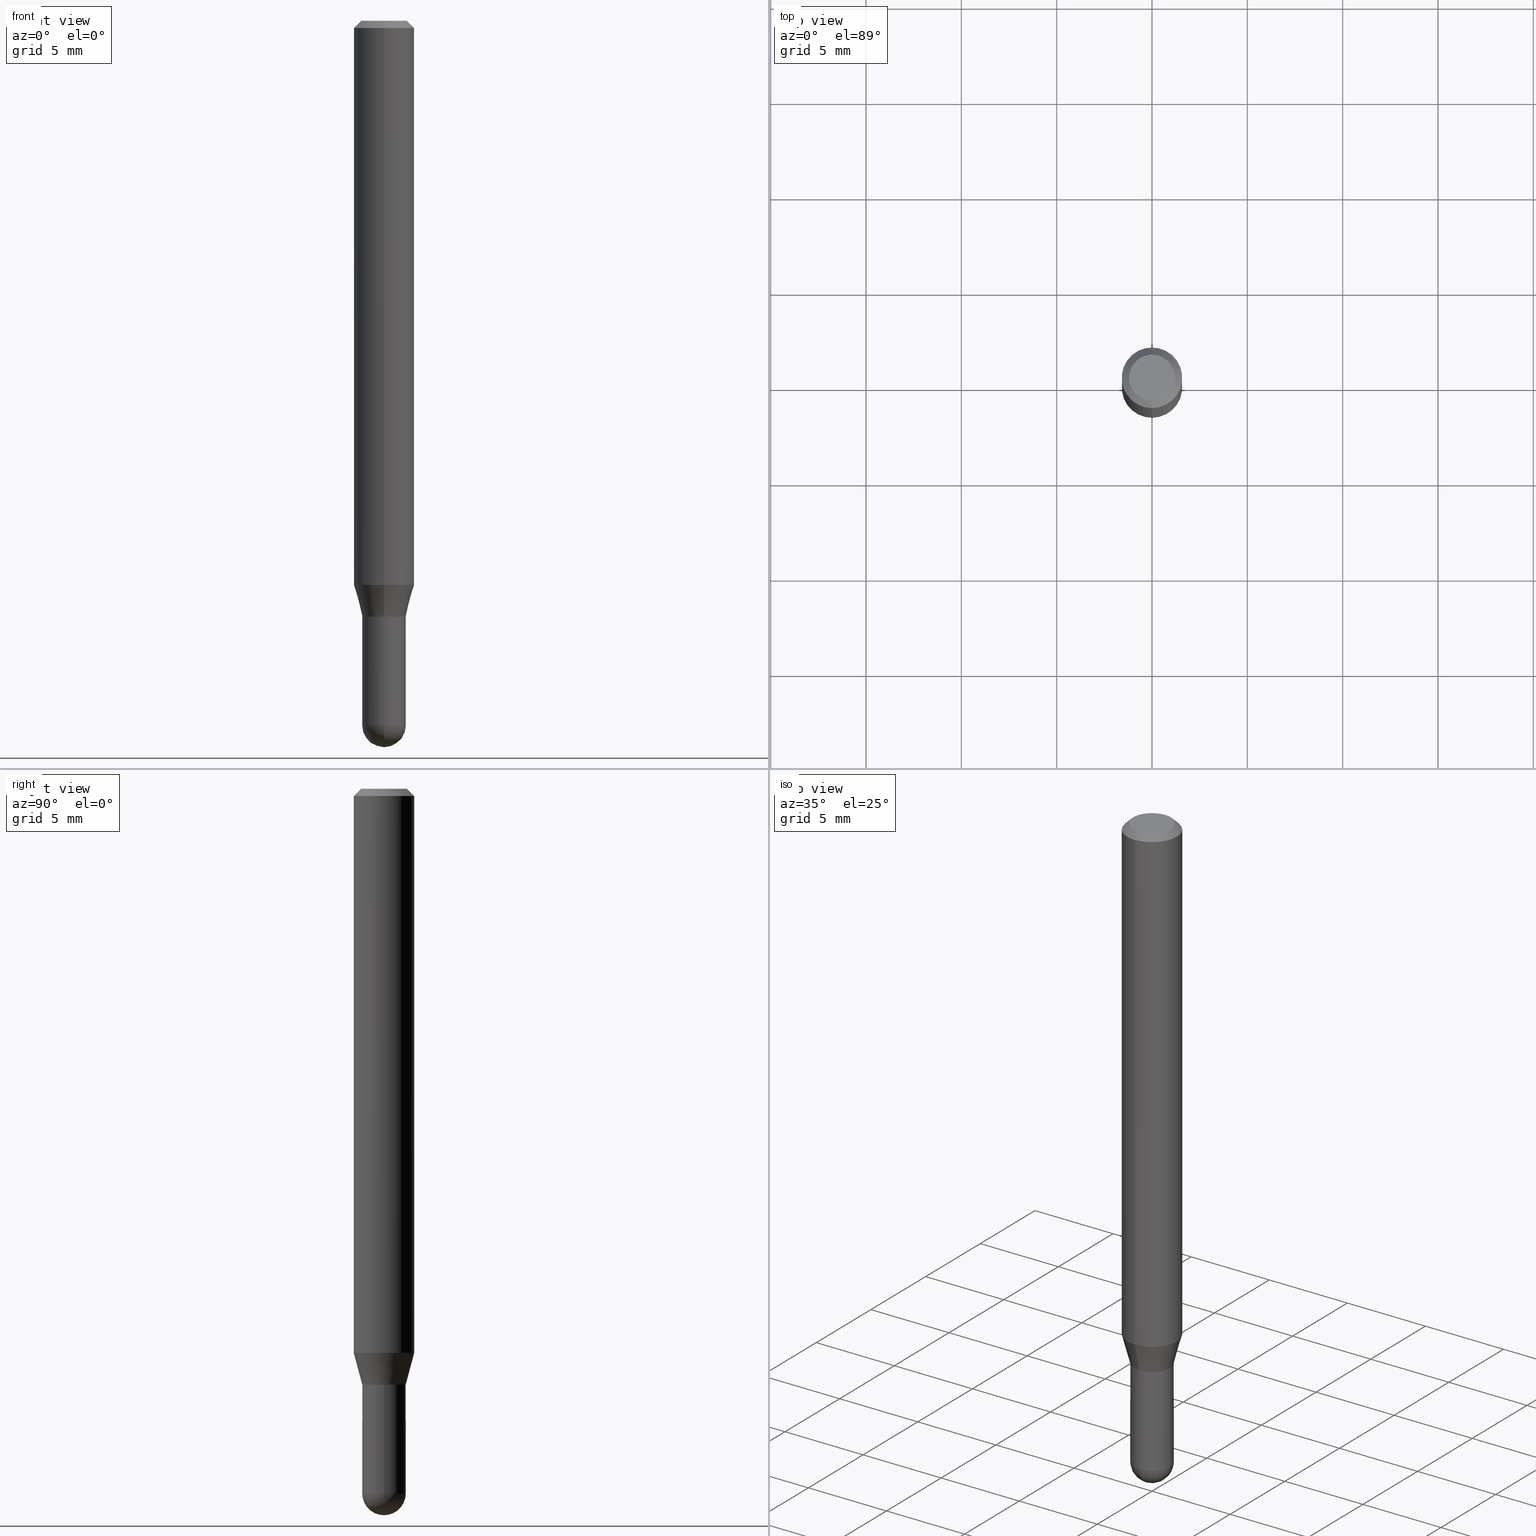
[diagram: canonical four-view strip — front | top / right | iso, engineering-drawing reading convention]
A machine part, canonical four-view strip (front | top / right | iso — engineering-drawing reading convention). The complete STEP part file that produces these views, byte-faithful:
ISO-10303-21;
HEADER;
FILE_DESCRIPTION (( 'STEP AP203' ),
    '1' );
FILE_NAME ('01491.STEP',
    '2024-03-07T21:39:30',
    ( '' ),
    ( '' ),
    'SwSTEP 2.0',
    'SolidWorks 2023',
    '' );
FILE_SCHEMA (( 'CONFIG_CONTROL_DESIGN' ));
ENDSEC;

DATA;
#1 = LINE ( 'NONE', #433, #5 ) ;
#2 = CARTESIAN_POINT ( 'NONE',  ( 0.04500000000000001221, -5.001547017892805729E-15, -1.455000000000000293 ) ) ;
#3 = AXIS2_PLACEMENT_3D ( 'NONE', #240, #84, #431 ) ;
#4 = VECTOR ( 'NONE', #130, 39.37007874015748143 ) ;
#5 = VECTOR ( 'NONE', #471, 39.37007874015748143 ) ;
#6 = ADVANCED_FACE ( 'NONE', ( #104 ), #379, .F. ) ;
#7 = CARTESIAN_POINT ( 'NONE',  ( 3.007947858688873947E-29, -4.294491648388684344E-15, -1.230000000000000204 ) ) ;
#8 = DIRECTION ( 'NONE',  ( -6.982962677686265922E-15, -1.000000000000000000, 3.035386659626955187E-15 ) ) ;
#9 = CARTESIAN_POINT ( 'NONE',  ( 0.000000000000000000, 0.000000000000000000, 0.000000000000000000 ) ) ;
#10 = VERTEX_POINT ( 'NONE', #454 ) ;
#11 = ORIENTED_EDGE ( 'NONE', *, *, #12, .F. ) ;
#12 = EDGE_CURVE ( 'NONE', #485, #113, #409, .T. ) ;
#13 =( NAMED_UNIT ( * ) SI_UNIT ( $, .STERADIAN. ) SOLID_ANGLE_UNIT ( ) );
#14 = DIRECTION ( 'NONE',  ( -2.445486063974693854E-29, 3.491456624706247087E-15, 1.000000000000000000 ) ) ;
#15 = LINE ( 'NONE', #206, #275 ) ;
#16 = DIRECTION ( 'NONE',  ( -6.982962677686265922E-15, -1.000000000000000000, 3.069492127712655324E-15 ) ) ;
#17 = EDGE_LOOP ( 'NONE', ( #256, #487, #48, #210 ) ) ;
#18 = CONICAL_SURFACE ( 'NONE', #315, 0.04500000000000006078, 0.2617993877991574014 ) ;
#19 = EDGE_CURVE ( 'NONE', #347, #405, #291, .T. ) ;
#20 = AXIS2_PLACEMENT_3D ( 'NONE', #330, #213, #370 ) ;
#21 = DIRECTION ( 'NONE',  ( -6.982962677686265922E-15, -1.000000000000000000, 3.035386659626955187E-15 ) ) ;
#22 = ORIENTED_EDGE ( 'NONE', *, *, #286, .F. ) ;
#23 = CARTESIAN_POINT ( 'NONE',  ( -3.142333204958523014E-16, -0.04500000000000434902, -1.230000000000000204 ) ) ;
#24 = ORIENTED_EDGE ( 'NONE', *, *, #38, .T. ) ;
#25 = ORIENTED_EDGE ( 'NONE', *, *, #165, .F. ) ;
#26 = DATE_AND_TIME ( #88, #139 ) ;
#27 = CARTESIAN_POINT ( 'NONE',  ( 2.167065889285991824E-46, -3.093952023192066973E-32, -8.861493513333782588E-18 ) ) ;
#28 = VERTEX_POINT ( 'NONE', #412 ) ;
#29 = DIRECTION ( 'NONE',  ( 1.000000000000000000, -6.982962677686266711E-15, 0.000000000000000000 ) ) ;
#30 = CONICAL_SURFACE ( 'NONE', #316, 0.04449999999999999789, 0.7853981633974739252 ) ;
#31 = AXIS2_PLACEMENT_3D ( 'NONE', #9, #169, #91 ) ;
#32 = ORIENTED_EDGE ( 'NONE', *, *, #242, .F. ) ;
#33 = PRODUCT_RELATED_PRODUCT_CATEGORY ( 'detail', '', ( #205 ) ) ;
#34 = DIRECTION ( 'NONE',  ( -2.445486063974693573E-29, 3.491456624706247087E-15, 1.000000000000000000 ) ) ;
#35 = ORIENTED_EDGE ( 'NONE', *, *, #456, .T. ) ;
#36 = CARTESIAN_POINT ( 'NONE',  ( 3.554308864698067654E-29, -5.085616258612941015E-15, -1.455000000000000293 ) ) ;
#37 = DIRECTION ( 'NONE',  ( -2.445486063974693854E-29, 3.491456624706247087E-15, 1.000000000000000000 ) ) ;
#38 = EDGE_CURVE ( 'NONE', #497, #10, #166, .T. ) ;
#39 = EDGE_CURVE ( 'NONE', #216, #485, #176, .T. ) ;
#40 = AXIS2_PLACEMENT_3D ( 'NONE', #36, #112, #314 ) ;
#41 = CYLINDRICAL_SURFACE ( 'NONE', #200, 0.04500000000000000527 ) ;
#42 = CARTESIAN_POINT ( 'NONE',  ( 3.007947858688874508E-29, -4.294491648388685132E-15, -1.230000000000000426 ) ) ;
#43 = ADVANCED_FACE ( 'NONE', ( #489 ), #64, .F. ) ;
#44 = CARTESIAN_POINT ( 'NONE',  ( -0.04499999999999999833, -4.367569466304877886E-15, -1.230000000000000204 ) ) ;
#45 = CONICAL_SURFACE ( 'NONE', #281, 0.04449999999999999789, 0.7853981633974739252 ) ;
#46 = FACE_OUTER_BOUND ( 'NONE', #313, .T. ) ;
#47 = CARTESIAN_POINT ( 'NONE',  ( 3.316907271900976096E-16, 0.04749999999999999362, -1.702749364302136000E-16 ) ) ;
#48 = ORIENTED_EDGE ( 'NONE', *, *, #145, .F. ) ;
#49 = DIRECTION ( 'NONE',  ( -2.445486063974693854E-29, 3.491456624706247087E-15, 1.000000000000000000 ) ) ;
#50 = ORIENTED_EDGE ( 'NONE', *, *, #158, .F. ) ;
#51 = AXIS2_PLACEMENT_3D ( 'NONE', #157, #285, #54 ) ;
#52 = VECTOR ( 'NONE', #73, 39.37007874015748854 ) ;
#53 = AXIS2_PLACEMENT_3D ( 'NONE', #125, #480, #8 ) ;
#54 = DIRECTION ( 'NONE',  ( 1.000000000000000000, -6.982962677686267499E-15, 4.876176775795935793E-29 ) ) ;
#55 = CARTESIAN_POINT ( 'NONE',  ( 3.006725115656886201E-29, -4.292745920076331103E-15, -1.229500000000000037 ) ) ;
#56 = APPLICATION_PROTOCOL_DEFINITION ( 'international standard', 'config_control_design', 1994, #244 ) ;
#57 = DIRECTION ( 'NONE',  ( -2.445486063974693573E-29, 3.491456624706247087E-15, 1.000000000000000000 ) ) ;
#58 = EDGE_CURVE ( 'NONE', #192, #146, #265, .T. ) ;
#59 = APPLICATION_PROTOCOL_DEFINITION ( 'international standard', 'config_control_design', 1994, #109 ) ;
#60 = ORIENTED_EDGE ( 'NONE', *, *, #434, .T. ) ;
#61 = AXIS2_PLACEMENT_3D ( 'NONE', #269, #239, #394 ) ;
#62 = APPROVAL_DATE_TIME ( #116, #274 ) ;
#63 = DIRECTION ( 'NONE',  ( -2.445486063974693854E-29, 3.491456624706247087E-15, 1.000000000000000000 ) ) ;
#64 = PLANE ( 'NONE',  #234 ) ;
#65 = ORIENTED_EDGE ( 'NONE', *, *, #154, .F. ) ;
#66 = PERSON_AND_ORGANIZATION_ROLE ( 'creator' ) ;
#67 = CARTESIAN_POINT ( 'NONE',  ( 3.197442310920811129E-16, 0.04499999999999498151, -1.455000000000000515 ) ) ;
#68 = ORIENTED_EDGE ( 'NONE', *, *, #498, .F. ) ;
#69 = DIRECTION ( 'NONE',  ( -2.445486063974693854E-29, 3.491456624706247087E-15, 1.000000000000000000 ) ) ;
#70 = CC_DESIGN_PERSON_AND_ORGANIZATION_ASSIGNMENT ( #219, #66, ( #95 ) ) ;
#71 = ORIENTED_EDGE ( 'NONE', *, *, #19, .T. ) ;
#72 = DATE_TIME_ROLE ( 'classification_date' ) ;
#73 = DIRECTION ( 'NONE',  ( -1.807323732225378260E-15, -0.2588190451025250693, 0.9659258262890670910 ) ) ;
#74 = AXIS2_PLACEMENT_3D ( 'NONE', #144, #459, #29 ) ;
#75 = LOCAL_TIME ( 16, 39, 30.00000000000000000, #482 ) ;
#76 = ORIENTED_EDGE ( 'NONE', *, *, #154, .T. ) ;
#77 = SPHERICAL_SURFACE ( 'NONE', #61, 0.04500000000000011630 ) ;
#78 = ADVANCED_FACE ( 'NONE', ( #470 ), #262, .F. ) ;
#79 = ADVANCED_FACE ( 'NONE', ( #329 ), #30, .T. ) ;
#80 = PLANE ( 'NONE',  #3 ) ;
#81 = CARTESIAN_POINT ( 'NONE',  ( -4.364351673553631718E-16, -0.06250000000000406619, -1.164689110867547006 ) ) ;
#82 = AXIS2_PLACEMENT_3D ( 'NONE', #186, #69, #229 ) ;
#83 = DIRECTION ( 'NONE',  ( -2.445486063974693573E-29, 3.491456624706247087E-15, 1.000000000000000000 ) ) ;
#84 = DIRECTION ( 'NONE',  ( 2.438088387897960049E-29, -3.491481338843145188E-15, -1.000000000000000000 ) ) ;
#85 = DIRECTION ( 'NONE',  ( 1.000000000000000000, -6.982962677686265922E-15, 4.883557194083112340E-29 ) ) ;
#86 = CIRCLE ( 'NONE', #359, 0.04500000000000006078 ) ;
#87 = AXIS2_PLACEMENT_3D ( 'NONE', #101, #368, #332 ) ;
#88 = CALENDAR_DATE ( 2024, 7, 3 ) ;
#89 = EDGE_CURVE ( 'NONE', #426, #150, #123, .T. ) ;
#90 = ORIENTED_EDGE ( 'NONE', *, *, #498, .T. ) ;
#91 = DIRECTION ( 'NONE',  ( 1.000000000000000000, 0.000000000000000000, 0.000000000000000000 ) ) ;
#92 = EDGE_LOOP ( 'NONE', ( #260, #305, #71, #467 ) ) ;
#93 = CIRCLE ( 'NONE', #175, 0.06250000000000000000 ) ;
#94 = CIRCLE ( 'NONE', #161, 0.06250000000000000000 ) ;
#95 = PRODUCT_DEFINITION_FORMATION_WITH_SPECIFIED_SOURCE ( 'ANY', '', #205, .NOT_KNOWN. ) ;
#96 = APPROVAL_DATE_TIME ( #403, #462 ) ;
#97 = DIRECTION ( 'NONE',  ( 1.000000000000000000, -6.982962677686266711E-15, 0.000000000000000000 ) ) ;
#98 = EDGE_CURVE ( 'NONE', #259, #110, #362, .T. ) ;
#99 = CARTESIAN_POINT ( 'NONE',  ( 3.007947858688873947E-29, -4.294491648388684344E-15, -1.230000000000000204 ) ) ;
#100 = COORDINATED_UNIVERSAL_TIME_OFFSET ( 5, 0, .BEHIND. ) ;
#101 = CARTESIAN_POINT ( 'NONE',  ( 3.007926631607718216E-29, -4.294522046777069173E-15, -1.230000000000000204 ) ) ;
#102 = ORIENTED_EDGE ( 'NONE', *, *, #425, .T. ) ;
#103 = CC_DESIGN_DATE_AND_TIME_ASSIGNMENT ( #343, #72, ( #162 ) ) ;
#104 = FACE_OUTER_BOUND ( 'NONE', #222, .T. ) ;
#105 = ORIENTED_EDGE ( 'NONE', *, *, #58, .F. ) ;
#106 = PERSON_AND_ORGANIZATION_ROLE ( 'design_supplier' ) ;
#107 = CIRCLE ( 'NONE', #408, 0.04500000000000001221 ) ;
#108 = DIRECTION ( 'NONE',  ( -2.445468806185136597E-29, 3.491481338843145583E-15, 1.000000000000000000 ) ) ;
#109 = APPLICATION_CONTEXT ( 'configuration controlled 3d designs of mechanical parts and assemblies' ) ;
#110 = VERTEX_POINT ( 'NONE', #292 ) ;
#111 = ADVANCED_FACE ( 'NONE', ( #215 ), #300, .T. ) ;
#112 = DIRECTION ( 'NONE',  ( 1.000000000000000000, -7.105427357601001070E-15, 4.926315508542082329E-29 ) ) ;
#113 = VERTEX_POINT ( 'NONE', #488 ) ;
#114 = CARTESIAN_POINT ( 'NONE',  ( -3.773273898774340269E-16, -0.04749999999999999362, 1.569826961602129331E-16 ) ) ;
#115 = ORIENTED_EDGE ( 'NONE', *, *, #352, .F. ) ;
#116 = DATE_AND_TIME ( #147, #492 ) ;
#117 = VECTOR ( 'NONE', #83, 39.37007874015748143 ) ;
#118 = DIRECTION ( 'NONE',  ( -2.445486063974693854E-29, 3.491456624706247087E-15, 1.000000000000000000 ) ) ;
#119 = DIRECTION ( 'NONE',  ( 6.982962677686265922E-15, 1.000000000000000000, -3.483106191921935554E-15 ) ) ;
#120 = CYLINDRICAL_SURFACE ( 'NONE', #51, 0.04500000000000000527 ) ;
#121 = DIRECTION ( 'NONE',  ( -2.445486063974693573E-29, 3.491456624706247087E-15, 1.000000000000000000 ) ) ;
#122 = CC_DESIGN_APPROVAL ( #274, ( #162 ) ) ;
#123 = CIRCLE ( 'NONE', #249, 0.06250000000000000000 ) ;
#124 = AXIS2_PLACEMENT_3D ( 'NONE', #310, #118, #236 ) ;
#125 = CARTESIAN_POINT ( 'NONE',  ( 3.007947858688874508E-29, -4.294491648388685132E-15, -1.230000000000000426 ) ) ;
#126 = CARTESIAN_POINT ( 'NONE',  ( 3.554308864698067654E-29, -5.085616258612941015E-15, -1.455000000000000293 ) ) ;
#127 = DESIGN_CONTEXT ( 'detailed design', #244, 'design' ) ;
#128 = CONICAL_SURFACE ( 'NONE', #376, 0.06250000000000000000, 0.7853981633974483900 ) ;
#129 = VERTEX_POINT ( 'NONE', #404 ) ;
#130 = DIRECTION ( 'NONE',  ( 4.937700262164548042E-15, 0.7071067811865451302, -0.7071067811865499042 ) ) ;
#131 = ORIENTED_EDGE ( 'NONE', *, *, #39, .T. ) ;
#132 = ORIENTED_EDGE ( 'NONE', *, *, #352, .T. ) ;
#133 = DIRECTION ( 'NONE',  ( -6.982962677686265922E-15, -1.000000000000000000, 3.035386659626955187E-15 ) ) ;
#134 = DIRECTION ( 'NONE',  ( -6.982962677686265922E-15, -1.000000000000000000, 4.370956789862821150E-15 ) ) ;
#135 = EDGE_CURVE ( 'NONE', #113, #423, #346, .T. ) ;
#136 = CARTESIAN_POINT ( 'NONE',  ( 3.558157112999374623E-29, -5.080105348016777334E-15, -1.455000000000000293 ) ) ;
#137 = ORIENTED_EDGE ( 'NONE', *, *, #221, .T. ) ;
#138 = ORIENTED_EDGE ( 'NONE', *, *, #479, .T. ) ;
#139 = LOCAL_TIME ( 16, 39, 30.00000000000000000, #100 ) ;
#140 = ORIENTED_EDGE ( 'NONE', *, *, #286, .T. ) ;
#141 = DIRECTION ( 'NONE',  ( -6.982962677686265922E-15, -1.000000000000000000, 3.035386659626955187E-15 ) ) ;
#142 = ORIENTED_EDGE ( 'NONE', *, *, #328, .T. ) ;
#143 = CALENDAR_DATE ( 2024, 7, 3 ) ;
#144 = CARTESIAN_POINT ( 'NONE',  ( 3.558157112999374623E-29, -5.080105348016777334E-15, -1.455000000000000293 ) ) ;
#145 = EDGE_CURVE ( 'NONE', #485, #192, #107, .T. ) ;
#146 = VERTEX_POINT ( 'NONE', #374 ) ;
#147 = CALENDAR_DATE ( 2024, 7, 3 ) ;
#148 = VECTOR ( 'NONE', #189, 39.37007874015748143 ) ;
#149 = DIRECTION ( 'NONE',  ( -6.982962677686266711E-15, -1.000000000000000000, 3.491456624706247087E-15 ) ) ;
#150 = VERTEX_POINT ( 'NONE', #217 ) ;
#151 = FACE_OUTER_BOUND ( 'NONE', #92, .T. ) ;
#152 = ORIENTED_EDGE ( 'NONE', *, *, #261, .T. ) ;
#153 = DIRECTION ( 'NONE',  ( 5.024295867788190974E-15, 0.7071067811865681119, 0.7071067811865270336 ) ) ;
#154 = EDGE_CURVE ( 'NONE', #150, #110, #258, .T. ) ;
#155 = DIRECTION ( 'NONE',  ( -2.445486063974693854E-29, 3.491456624706247087E-15, 1.000000000000000000 ) ) ;
#156 = FACE_OUTER_BOUND ( 'NONE', #505, .T. ) ;
#157 = CARTESIAN_POINT ( 'NONE',  ( 0.000000000000000000, 0.000000000000000000, 0.000000000000000000 ) ) ;
#158 = EDGE_CURVE ( 'NONE', #10, #347, #371, .T. ) ;
#159 = DIRECTION ( 'NONE',  ( -1.000000000000000000, 6.982962677686265922E-15, -4.883557194083112340E-29 ) ) ;
#160 = CC_DESIGN_APPROVAL ( #462, ( #201 ) ) ;
#161 = AXIS2_PLACEMENT_3D ( 'NONE', #501, #378, #469 ) ;
#162 = SECURITY_CLASSIFICATION ( '', '', #224 ) ;
#163 = DIRECTION ( 'NONE',  ( -6.982962677686265922E-15, -1.000000000000000000, 6.070773319253902486E-15 ) ) ;
#164 = CARTESIAN_POINT ( 'NONE',  ( 3.668229095962043461E-31, -5.237184937059373195E-17, -0.01500000000000000812 ) ) ;
#165 = EDGE_CURVE ( 'NONE', #10, #150, #390, .T. ) ;
#166 = CIRCLE ( 'NONE', #309, 0.04500000000000006078 ) ;
#167 = ORIENTED_EDGE ( 'NONE', *, *, #295, .T. ) ;
#168 = DIRECTION ( 'NONE',  ( -2.445486063974693854E-29, 3.491456624706247087E-15, 1.000000000000000000 ) ) ;
#169 = DIRECTION ( 'NONE',  ( 0.000000000000000000, 0.000000000000000000, 1.000000000000000000 ) ) ;
#170 = DIRECTION ( 'NONE',  ( 6.982962677686265922E-15, 1.000000000000000000, -3.483106191921935554E-15 ) ) ;
#171 = ORIENTED_EDGE ( 'NONE', *, *, #38, .F. ) ;
#172 = PERSON ( 'UNSPECIFIED', 'UNSPECIFIED', 'UNSPECIFIED', ('UNSPECIFIED'), ('UNSPECIFIED'), ('UNSPECIFIED') ) ;
#173 = ORIENTED_EDGE ( 'NONE', *, *, #98, .T. ) ;
#174 = ORIENTED_EDGE ( 'NONE', *, *, #221, .F. ) ;
#175 = AXIS2_PLACEMENT_3D ( 'NONE', #164, #202, #396 ) ;
#176 = CIRCLE ( 'NONE', #20, 0.04500000000000001221 ) ;
#177 = CARTESIAN_POINT ( 'NONE',  ( 3.197442310920454169E-16, 0.04500000000000006078, -1.571155481117813191E-16 ) ) ;
#178 = DIRECTION ( 'NONE',  ( -6.982962677686265922E-15, -1.000000000000000000, 3.491456624706247087E-15 ) ) ;
#179 = ORIENTED_EDGE ( 'NONE', *, *, #456, .F. ) ;
#180 = APPROVAL_ROLE ( '' ) ;
#181 = FACE_OUTER_BOUND ( 'NONE', #502, .T. ) ;
#182 = ORIENTED_EDGE ( 'NONE', *, *, #89, .T. ) ;
#183 = ADVANCED_FACE ( 'NONE', ( #181 ), #128, .T. ) ;
#184 = ORIENTED_EDGE ( 'NONE', *, *, #191, .T. ) ;
#185 = PERSON_AND_ORGANIZATION_ROLE ( 'classification_officer' ) ;
#186 = CARTESIAN_POINT ( 'NONE',  ( 0.000000000000000000, 0.000000000000000000, 0.000000000000000000 ) ) ;
#187 = ORIENTED_EDGE ( 'NONE', *, *, #322, .T. ) ;
#188 = AXIS2_PLACEMENT_3D ( 'NONE', #27, #225, #276 ) ;
#189 = DIRECTION ( 'NONE',  ( 1.839019923739649225E-15, 0.2588190451025318417, 0.9659258262890653146 ) ) ;
#190 = EDGE_LOOP ( 'NONE', ( #68, #140, #131, #303, #272 ) ) ;
#191 = EDGE_CURVE ( 'NONE', #259, #226, #481, .T. ) ;
#192 = VERTEX_POINT ( 'NONE', #67 ) ;
#193 = CYLINDRICAL_SURFACE ( 'NONE', #387, 0.04500000000000006078 ) ;
#194 = DIRECTION ( 'NONE',  ( -6.982962677686265922E-15, -1.000000000000000000, 3.035386659626955187E-15 ) ) ;
#195 = DIRECTION ( 'NONE',  ( -6.982962677686265922E-15, -1.000000000000000000, 3.069492127712655324E-15 ) ) ;
#196 = EDGE_CURVE ( 'NONE', #28, #192, #284, .T. ) ;
#197 = DIRECTION ( 'NONE',  ( -2.445468806185136597E-29, 3.491481338843145583E-15, 1.000000000000000000 ) ) ;
#198 = CARTESIAN_POINT ( 'NONE',  ( 2.848230989489664552E-29, -4.066461511861726664E-15, -1.164689110867547450 ) ) ;
#199 = CIRCLE ( 'NONE', #231, 0.04449999999999999789 ) ;
#200 = AXIS2_PLACEMENT_3D ( 'NONE', #400, #197, #321 ) ;
#201 = PRODUCT_DEFINITION ( 'UNKNOWN', '', #95, #127 ) ;
#202 = DIRECTION ( 'NONE',  ( -2.445486063974693854E-29, 3.491456624706247087E-15, 1.000000000000000000 ) ) ;
#203 = CARTESIAN_POINT ( 'NONE',  ( 3.007947858688873947E-29, -4.294491648388684344E-15, -1.230000000000000204 ) ) ;
#204 = ORIENTED_EDGE ( 'NONE', *, *, #89, .F. ) ;
#205 = PRODUCT ( '01491', '01491', '', ( #401 ) ) ;
#206 = CARTESIAN_POINT ( 'NONE',  ( -0.04500000000000000527, 3.197442310920451211E-16, -2.213520790614707910E-30 ) ) ;
#207 = DIRECTION ( 'NONE',  ( 2.445486063974693573E-29, -3.491456624706247087E-15, -1.000000000000000000 ) ) ;
#208 = ORIENTED_EDGE ( 'NONE', *, *, #242, .T. ) ;
#209 = VECTOR ( 'NONE', #57, 39.37007874015748143 ) ;
#210 = ORIENTED_EDGE ( 'NONE', *, *, #39, .F. ) ;
#211 =( NAMED_UNIT ( * ) PLANE_ANGLE_UNIT ( ) SI_UNIT ( $, .RADIAN. ) );
#212 = DIRECTION ( 'NONE',  ( 2.445486063974693854E-29, -3.491456624706247087E-15, -1.000000000000000000 ) ) ;
#213 = DIRECTION ( 'NONE',  ( -2.445468806185136597E-29, 3.491481338843145583E-15, 1.000000000000000000 ) ) ;
#214 = PERSON_AND_ORGANIZATION_ROLE ( 'creator' ) ;
#215 = FACE_OUTER_BOUND ( 'NONE', #461, .T. ) ;
#216 = VERTEX_POINT ( 'NONE', #422 ) ;
#217 = CARTESIAN_POINT ( 'NONE',  ( 4.440892098500910152E-16, 0.06249999999999592687, -1.164689110867547672 ) ) ;
#218 = CARTESIAN_POINT ( 'NONE',  ( 0.000000000000000000, 0.000000000000000000, 0.000000000000000000 ) ) ;
#219 = PERSON_AND_ORGANIZATION ( #172, #290 ) ;
#220 = DIRECTION ( 'NONE',  ( -6.982962677686265922E-15, -1.000000000000000000, 3.491456624706246693E-15 ) ) ;
#221 = EDGE_CURVE ( 'NONE', #299, #129, #327, .T. ) ;
#222 = EDGE_LOOP ( 'NONE', ( #50, #171, #60, #334 ) ) ;
#223 = VERTEX_POINT ( 'NONE', #271 ) ;
#224 = SECURITY_CLASSIFICATION_LEVEL ( 'unclassified' ) ;
#225 = DIRECTION ( 'NONE',  ( -2.445486063974693854E-29, 3.491456624706247087E-15, 1.000000000000000000 ) ) ;
#226 = VERTEX_POINT ( 'NONE', #114 ) ;
#227 = ADVANCED_BREP_SHAPE_REPRESENTATION ( '01491', ( #430, #267, #31 ), #510 ) ;
#228 = SHAPE_DEFINITION_REPRESENTATION ( #445, #227 ) ;
#229 = DIRECTION ( 'NONE',  ( -6.982962677686265922E-15, -1.000000000000000000, 3.491456624706247087E-15 ) ) ;
#230 = ADVANCED_FACE ( 'NONE', ( #504 ), #382, .T. ) ;
#231 = AXIS2_PLACEMENT_3D ( 'NONE', #473, #435, #195 ) ;
#232 = EDGE_LOOP ( 'NONE', ( #25, #142, #457, #179 ) ) ;
#233 = DATE_AND_TIME ( #143, #254 ) ;
#234 = AXIS2_PLACEMENT_3D ( 'NONE', #99, #372, #178 ) ;
#235 = AXIS2_PLACEMENT_3D ( 'NONE', #126, #85, #163 ) ;
#236 = DIRECTION ( 'NONE',  ( -6.982962677686265922E-15, -1.000000000000000000, 3.491456624706247087E-15 ) ) ;
#237 = ORIENTED_EDGE ( 'NONE', *, *, #261, .F. ) ;
#238 = COORDINATED_UNIVERSAL_TIME_OFFSET ( 5, 0, .BEHIND. ) ;
#239 = DIRECTION ( 'NONE',  ( 1.000000000000000000, -6.982962677686265922E-15, 4.883557194083112340E-29 ) ) ;
#240 = CARTESIAN_POINT ( 'NONE',  ( 3.142333204959120083E-16, 0.04499999999999570316, -1.230000000000000204 ) ) ;
#241 = DIRECTION ( 'NONE',  ( -6.982962677686265922E-15, -1.000000000000000000, 3.035386659626955187E-15 ) ) ;
#242 = EDGE_CURVE ( 'NONE', #226, #259, #432, .T. ) ;
#243 = AXIS2_PLACEMENT_3D ( 'NONE', #47, #207, #364 ) ;
#244 = APPLICATION_CONTEXT ( 'configuration controlled 3d designs of mechanical parts and assemblies' ) ;
#245 = DIRECTION ( 'NONE',  ( -2.445486063974693854E-29, 3.491456624706247087E-15, 1.000000000000000000 ) ) ;
#246 = SPHERICAL_SURFACE ( 'NONE', #235, 0.04500000000000011630 ) ;
#247 = DIRECTION ( 'NONE',  ( -2.445486063974693854E-29, 3.491456624706247087E-15, 1.000000000000000000 ) ) ;
#248 = CIRCLE ( 'NONE', #399, 0.06250000000000000000 ) ;
#249 = AXIS2_PLACEMENT_3D ( 'NONE', #453, #483, #134 ) ;
#250 = CALENDAR_DATE ( 2024, 7, 3 ) ;
#251 = CARTESIAN_POINT ( 'NONE',  ( 3.668229095962043461E-31, -5.237184937059373195E-17, -0.01500000000000000812 ) ) ;
#252 = ORIENTED_EDGE ( 'NONE', *, *, #255, .F. ) ;
#253 = PERSON_AND_ORGANIZATION ( #172, #290 ) ;
#254 = LOCAL_TIME ( 16, 39, 30.00000000000000000, #500 ) ;
#255 = EDGE_CURVE ( 'NONE', #497, #426, #341, .T. ) ;
#256 = ORIENTED_EDGE ( 'NONE', *, *, #322, .F. ) ;
#257 = VECTOR ( 'NONE', #153, 39.37007874015748143 ) ;
#258 = LINE ( 'NONE', #410, #209 ) ;
#259 = VERTEX_POINT ( 'NONE', #509 ) ;
#260 = ORIENTED_EDGE ( 'NONE', *, *, #328, .F. ) ;
#261 = EDGE_CURVE ( 'NONE', #299, #347, #428, .T. ) ;
#262 = PLANE ( 'NONE',  #243 ) ;
#263 = ORIENTED_EDGE ( 'NONE', *, *, #135, .F. ) ;
#264 = ORIENTED_EDGE ( 'NONE', *, *, #418, .F. ) ;
#265 = CIRCLE ( 'NONE', #491, 0.04500000000000001221 ) ;
#266 = PERSON_AND_ORGANIZATION ( #172, #290 ) ;
#267 = MANIFOLD_SOLID_BREP ( 'Body-Move/Copy2[2]', #438 ) ;
#268 = APPROVAL ( #393, 'UNSPECIFIED' ) ;
#269 = CARTESIAN_POINT ( 'NONE',  ( 3.554308864698067654E-29, -5.085616258612941015E-15, -1.455000000000000293 ) ) ;
#270 = ORIENTED_EDGE ( 'NONE', *, *, #363, .T. ) ;
#271 = CARTESIAN_POINT ( 'NONE',  ( -4.364351673553912750E-16, -0.06250000000000005551, -0.01499999999999979128 ) ) ;
#272 = ORIENTED_EDGE ( 'NONE', *, *, #295, .F. ) ;
#273 = DIRECTION ( 'NONE',  ( 2.445486063974693854E-29, -3.491456624706247087E-15, -1.000000000000000000 ) ) ;
#274 = APPROVAL ( #503, 'UNSPECIFIED' ) ;
#275 = VECTOR ( 'NONE', #289, 39.37007874015748143 ) ;
#276 = DIRECTION ( 'NONE',  ( -6.982962677686266711E-15, -1.000000000000000000, 3.491456624706247087E-15 ) ) ;
#277 = LINE ( 'NONE', #355, #373 ) ;
#278 = ADVANCED_FACE ( 'NONE', ( #151 ), #193, .F. ) ;
#279 = EDGE_CURVE ( 'NONE', #110, #223, #94, .T. ) ;
#280 = LINE ( 'NONE', #398, #117 ) ;
#281 = AXIS2_PLACEMENT_3D ( 'NONE', #7, #245, #283 ) ;
#282 = AXIS2_PLACEMENT_3D ( 'NONE', #385, #63, #149 ) ;
#283 = DIRECTION ( 'NONE',  ( -6.982962677686265922E-15, -1.000000000000000000, 3.069492127712655324E-15 ) ) ;
#284 = CIRCLE ( 'NONE', #40, 0.04500000000000011630 ) ;
#285 = DIRECTION ( 'NONE',  ( -2.445468806185136597E-29, 3.491481338843145583E-15, 1.000000000000000000 ) ) ;
#286 = EDGE_CURVE ( 'NONE', #146, #216, #448, .T. ) ;
#287 = CARTESIAN_POINT ( 'NONE',  ( 3.197442310920753937E-16, 0.04499999999999574479, -1.229500000000000259 ) ) ;
#288 = CC_DESIGN_PERSON_AND_ORGANIZATION_ASSIGNMENT ( #301, #214, ( #201 ) ) ;
#289 = DIRECTION ( 'NONE',  ( -2.445468806185136877E-29, 3.491481338843145188E-15, 1.000000000000000000 ) ) ;
#290 = ORGANIZATION ( 'UNSPECIFIED', 'UNSPECIFIED', '' ) ;
#291 = CIRCLE ( 'NONE', #353, 0.04500000000000006078 ) ;
#292 = CARTESIAN_POINT ( 'NONE',  ( 4.440892098500913110E-16, 0.06249999999999995837, -0.01500000000000022669 ) ) ;
#293 = ORIENTED_EDGE ( 'NONE', *, *, #363, .F. ) ;
#294 = EDGE_LOOP ( 'NONE', ( #384, #187, #22, #105 ) ) ;
#295 = EDGE_CURVE ( 'NONE', #423, #113, #357, .T. ) ;
#296 = DIRECTION ( 'NONE',  ( -2.445486063974693854E-29, 3.491456624706247087E-15, 1.000000000000000000 ) ) ;
#297 = ORIENTED_EDGE ( 'NONE', *, *, #425, .F. ) ;
#298 = APPROVAL_PERSON_ORGANIZATION ( #417, #268, #494 ) ;
#299 = VERTEX_POINT ( 'NONE', #506 ) ;
#300 = CONICAL_SURFACE ( 'NONE', #365, 0.06250000000000000000, 0.7853981633974483900 ) ;
#301 = PERSON_AND_ORGANIZATION ( #172, #290 ) ;
#302 = ADVANCED_FACE ( 'NONE', ( #344 ), #312, .T. ) ;
#303 = ORIENTED_EDGE ( 'NONE', *, *, #12, .T. ) ;
#304 = DIRECTION ( 'NONE',  ( -2.445468806185136597E-29, 3.491481338843145583E-15, 1.000000000000000000 ) ) ;
#305 = ORIENTED_EDGE ( 'NONE', *, *, #158, .T. ) ;
#306 = APPROVAL_DATE_TIME ( #233, #268 ) ;
#307 = CARTESIAN_POINT ( 'NONE',  ( 0.000000000000000000, 0.000000000000000000, 0.000000000000000000 ) ) ;
#308 = ORIENTED_EDGE ( 'NONE', *, *, #98, .F. ) ;
#309 = AXIS2_PLACEMENT_3D ( 'NONE', #333, #168, #21 ) ;
#310 = CARTESIAN_POINT ( 'NONE',  ( 0.000000000000000000, 0.000000000000000000, 0.000000000000000000 ) ) ;
#311 = ORIENTED_EDGE ( 'NONE', *, *, #145, .T. ) ;
#312 = CYLINDRICAL_SURFACE ( 'NONE', #124, 0.06250000000000000000 ) ;
#313 = EDGE_LOOP ( 'NONE', ( #464, #167 ) ) ;
#314 = DIRECTION ( 'NONE',  ( 7.105427357601001070E-15, 1.000000000000000000, 0.000000000000000000 ) ) ;
#315 = AXIS2_PLACEMENT_3D ( 'NONE', #42, #37, #194 ) ;
#316 = AXIS2_PLACEMENT_3D ( 'NONE', #203, #296, #16 ) ;
#317 = DIRECTION ( 'NONE',  ( -2.445486063974693854E-29, 3.491456624706247087E-15, 1.000000000000000000 ) ) ;
#318 = ADVANCED_FACE ( 'NONE', ( #463 ), #77, .T. ) ;
#319 = FACE_OUTER_BOUND ( 'NONE', #421, .T. ) ;
#320 = CC_DESIGN_PERSON_AND_ORGANIZATION_ASSIGNMENT ( #266, #185, ( #162 ) ) ;
#321 = DIRECTION ( 'NONE',  ( 1.000000000000000000, -6.982962677686267499E-15, 4.876176775795935793E-29 ) ) ;
#322 = EDGE_CURVE ( 'NONE', #28, #216, #336, .T. ) ;
#323 = FACE_OUTER_BOUND ( 'NONE', #17, .T. ) ;
#324 = UNCERTAINTY_MEASURE_WITH_UNIT (LENGTH_MEASURE( 1.000000000000000082E-05 ), #407, 'distance_accuracy_value', 'NONE');
#325 = CARTESIAN_POINT ( 'NONE',  ( -3.142333204958524493E-16, -0.04500000000000436984, -1.229500000000000037 ) ) ;
#326 = APPROVAL_STATUS ( 'not_yet_approved' ) ;
#327 = CIRCLE ( 'NONE', #475, 0.04449999999999999789 ) ;
#328 = EDGE_CURVE ( 'NONE', #10, #497, #437, .T. ) ;
#329 = FACE_OUTER_BOUND ( 'NONE', #337, .T. ) ;
#330 = CARTESIAN_POINT ( 'NONE',  ( 3.558157112999374623E-29, -5.080105348016777334E-15, -1.455000000000000293 ) ) ;
#331 = PERSON_AND_ORGANIZATION_ROLE ( 'design_owner' ) ;
#332 = DIRECTION ( 'NONE',  ( 1.000000000000000000, -6.982962677686269077E-15, 0.000000000000000000 ) ) ;
#333 = CARTESIAN_POINT ( 'NONE',  ( 3.007947858688874508E-29, -4.294491648388685132E-15, -1.230000000000000426 ) ) ;
#334 = ORIENTED_EDGE ( 'NONE', *, *, #512, .T. ) ;
#335 = CC_DESIGN_PERSON_AND_ORGANIZATION_ASSIGNMENT ( #253, #331, ( #205 ) ) ;
#336 = CIRCLE ( 'NONE', #474, 0.04500000000000011630 ) ;
#337 = EDGE_LOOP ( 'NONE', ( #237, #137, #499, #411 ) ) ;
#338 = VECTOR ( 'NONE', #415, 39.37007874015748143 ) ;
#339 = CARTESIAN_POINT ( 'NONE',  ( 3.558157112999374623E-29, -5.080105348016777334E-15, -1.455000000000000293 ) ) ;
#340 = ORIENTED_EDGE ( 'NONE', *, *, #279, .T. ) ;
#341 = LINE ( 'NONE', #23, #52 ) ;
#342 = ORIENTED_EDGE ( 'NONE', *, *, #479, .F. ) ;
#343 = DATE_AND_TIME ( #349, #427 ) ;
#344 = FACE_OUTER_BOUND ( 'NONE', #388, .T. ) ;
#345 = AXIS2_PLACEMENT_3D ( 'NONE', #468, #108, #350 ) ;
#346 = CIRCLE ( 'NONE', #87, 0.04499999999999999833 ) ;
#347 = VERTEX_POINT ( 'NONE', #287 ) ;
#348 = CONICAL_SURFACE ( 'NONE', #53, 0.04500000000000006078, 0.2617993877991574014 ) ;
#349 = CALENDAR_DATE ( 2024, 7, 3 ) ;
#350 = DIRECTION ( 'NONE',  ( 1.000000000000000000, -6.982962677686269077E-15, 0.000000000000000000 ) ) ;
#351 = CARTESIAN_POINT ( 'NONE',  ( 3.197442310920755416E-16, 0.04499999999999576561, -1.230000000000000648 ) ) ;
#352 = EDGE_CURVE ( 'NONE', #223, #110, #93, .T. ) ;
#353 = AXIS2_PLACEMENT_3D ( 'NONE', #55, #14, #141 ) ;
#354 = FACE_OUTER_BOUND ( 'NONE', #232, .T. ) ;
#355 = CARTESIAN_POINT ( 'NONE',  ( -3.142333204958823767E-16, -0.04500000000000006078, 1.571155481117813191E-16 ) ) ;
#356 = DIRECTION ( 'NONE',  ( -4.937700262164674260E-15, -0.7071067811865632269, 0.7071067811865319186 ) ) ;
#357 = CIRCLE ( 'NONE', #345, 0.04499999999999999833 ) ;
#358 = DIRECTION ( 'NONE',  ( -6.982962677686265922E-15, -1.000000000000000000, 4.370956789862821150E-15 ) ) ;
#359 = AXIS2_PLACEMENT_3D ( 'NONE', #440, #49, #133 ) ;
#360 = CARTESIAN_POINT ( 'NONE',  ( 3.007947858688874508E-29, -4.294491648388685132E-15, -1.230000000000000426 ) ) ;
#361 = ADVANCED_FACE ( 'NONE', ( #354 ), #348, .T. ) ;
#362 = LINE ( 'NONE', #495, #4 ) ;
#363 = EDGE_CURVE ( 'NONE', #426, #223, #280, .T. ) ;
#364 = DIRECTION ( 'NONE',  ( 6.982962677686265922E-15, 1.000000000000000000, -3.491456624706247087E-15 ) ) ;
#365 = AXIS2_PLACEMENT_3D ( 'NONE', #251, #212, #170 ) ;
#366 = ORIENTED_EDGE ( 'NONE', *, *, #512, .F. ) ;
#367 = EDGE_LOOP ( 'NONE', ( #297, #174 ) ) ;
#368 = DIRECTION ( 'NONE',  ( -2.445468806185136597E-29, 3.491481338843145583E-15, 1.000000000000000000 ) ) ;
#369 = DIMENSIONAL_EXPONENTS ( 1.000000000000000000, 0.000000000000000000, 0.000000000000000000, 0.000000000000000000, 0.000000000000000000, 0.000000000000000000, 0.000000000000000000 ) ;
#370 = DIRECTION ( 'NONE',  ( 1.000000000000000000, -6.982962677686266711E-15, 0.000000000000000000 ) ) ;
#371 = LINE ( 'NONE', #177, #460 ) ;
#372 = DIRECTION ( 'NONE',  ( -2.445486063974693573E-29, 3.491456624706247087E-15, 1.000000000000000000 ) ) ;
#373 = VECTOR ( 'NONE', #121, 39.37007874015748143 ) ;
#374 = CARTESIAN_POINT ( 'NONE',  ( -0.04500000000000001221, -4.367569466304877886E-15, -1.455000000000000293 ) ) ;
#375 = DIRECTION ( 'NONE',  ( -2.445486063974693854E-29, 3.491456624706247087E-15, 1.000000000000000000 ) ) ;
#376 = AXIS2_PLACEMENT_3D ( 'NONE', #465, #273, #119 ) ;
#377 = PERSON_AND_ORGANIZATION ( #172, #290 ) ;
#378 = DIRECTION ( 'NONE',  ( -2.445486063974693854E-29, 3.491456624706247087E-15, 1.000000000000000000 ) ) ;
#379 = CYLINDRICAL_SURFACE ( 'NONE', #439, 0.04500000000000006078 ) ;
#380 = EDGE_LOOP ( 'NONE', ( #416, #90, #263, #11, #311 ) ) ;
#381 = DATE_TIME_ROLE ( 'creation_date' ) ;
#382 = CYLINDRICAL_SURFACE ( 'NONE', #82, 0.06250000000000000000 ) ;
#383 = ADVANCED_FACE ( 'NONE', ( #319 ), #45, .T. ) ;
#384 = ORIENTED_EDGE ( 'NONE', *, *, #196, .F. ) ;
#385 = CARTESIAN_POINT ( 'NONE',  ( 2.167065889285991824E-46, -3.093952023192066973E-32, -8.861493513333782588E-18 ) ) ;
#386 = APPROVAL_PERSON_ORGANIZATION ( #377, #274, #180 ) ;
#387 = AXIS2_PLACEMENT_3D ( 'NONE', #307, #317, #220 ) ;
#388 = EDGE_LOOP ( 'NONE', ( #65, #35, #270, #444 ) ) ;
#389 = CC_DESIGN_APPROVAL ( #268, ( #95 ) ) ;
#390 = LINE ( 'NONE', #351, #148 ) ;
#391 = ORIENTED_EDGE ( 'NONE', *, *, #191, .F. ) ;
#392 = ADVANCED_FACE ( 'NONE', ( #436 ), #41, .T. ) ;
#393 = APPROVAL_STATUS ( 'not_yet_approved' ) ;
#394 = DIRECTION ( 'NONE',  ( -6.982962677686265922E-15, -1.000000000000000000, 6.070773319253902486E-15 ) ) ;
#395 = DIRECTION ( 'NONE',  ( -6.982962677686265922E-15, -1.000000000000000000, 0.000000000000000000 ) ) ;
#396 = DIRECTION ( 'NONE',  ( -6.982962677686265922E-15, -1.000000000000000000, 3.483106191921935554E-15 ) ) ;
#397 = CARTESIAN_POINT ( 'NONE',  ( -3.107418391570087519E-16, -0.04450000000000429307, -1.229999999999999982 ) ) ;
#398 = CARTESIAN_POINT ( 'NONE',  ( -4.364351673553916201E-16, -0.06250000000000000000, 2.182160390441404430E-16 ) ) ;
#399 = AXIS2_PLACEMENT_3D ( 'NONE', #198, #247, #358 ) ;
#400 = CARTESIAN_POINT ( 'NONE',  ( 0.000000000000000000, 0.000000000000000000, 0.000000000000000000 ) ) ;
#401 = MECHANICAL_CONTEXT ( 'NONE', #109, 'mechanical' ) ;
#402 = ADVANCED_FACE ( 'NONE', ( #323 ), #246, .T. ) ;
#403 = DATE_AND_TIME ( #250, #75 ) ;
#404 = CARTESIAN_POINT ( 'NONE',  ( -3.107418391570087519E-16, -0.04450000000000429307, -1.229999999999999982 ) ) ;
#405 = VERTEX_POINT ( 'NONE', #325 ) ;
#406 = CC_DESIGN_SECURITY_CLASSIFICATION ( #162, ( #95 ) ) ;
#407 =( CONVERSION_BASED_UNIT ( 'INCH', #443 ) LENGTH_UNIT ( ) NAMED_UNIT ( #369 ) );
#408 = AXIS2_PLACEMENT_3D ( 'NONE', #136, #449, #97 ) ;
#409 = LINE ( 'NONE', #442, #338 ) ;
#410 = CARTESIAN_POINT ( 'NONE',  ( 4.440892098500625669E-16, 0.06250000000000000000, -2.182160390441404430E-16 ) ) ;
#411 = ORIENTED_EDGE ( 'NONE', *, *, #19, .F. ) ;
#412 = CARTESIAN_POINT ( 'NONE',  ( 3.662430836825745564E-29, -5.245488374158964093E-15, -1.500000000000000444 ) ) ;
#413 = PERSON_AND_ORGANIZATION ( #172, #290 ) ;
#414 = CARTESIAN_POINT ( 'NONE',  ( 3.007947858688873947E-29, -4.294491648388684344E-15, -1.230000000000000204 ) ) ;
#415 = DIRECTION ( 'NONE',  ( -2.445468806185136877E-29, 3.491481338843145188E-15, 1.000000000000000000 ) ) ;
#416 = ORIENTED_EDGE ( 'NONE', *, *, #58, .T. ) ;
#417 = PERSON_AND_ORGANIZATION ( #172, #290 ) ;
#418 = EDGE_CURVE ( 'NONE', #129, #405, #429, .T. ) ;
#419 = DIRECTION ( 'NONE',  ( -6.982962677686265922E-15, -1.000000000000000000, 3.069492127712655324E-15 ) ) ;
#420 = CC_DESIGN_PERSON_AND_ORGANIZATION_ASSIGNMENT ( #413, #106, ( #95 ) ) ;
#421 = EDGE_LOOP ( 'NONE', ( #102, #152, #366, #264 ) ) ;
#422 = CARTESIAN_POINT ( 'NONE',  ( -3.142333204958468779E-16, -0.04500000000000515393, -1.454999999999999849 ) ) ;
#423 = VERTEX_POINT ( 'NONE', #44 ) ;
#424 = CARTESIAN_POINT ( 'NONE',  ( 3.161915174132745937E-16, 0.04449999999999570272, -1.230000000000000204 ) ) ;
#425 = EDGE_CURVE ( 'NONE', #129, #299, #199, .T. ) ;
#426 = VERTEX_POINT ( 'NONE', #81 ) ;
#427 = LOCAL_TIME ( 16, 39, 30.00000000000000000, #458 ) ;
#428 = LINE ( 'NONE', #424, #257 ) ;
#429 = LINE ( 'NONE', #397, #450 ) ;
#430 = MANIFOLD_SOLID_BREP ( 'Body-Move/Copy2[1]', #511 ) ;
#431 = DIRECTION ( 'NONE',  ( -1.000000000000000000, 6.982962677686265922E-15, -4.876176775795935793E-29 ) ) ;
#432 = CIRCLE ( 'NONE', #282, 0.04749999999999999362 ) ;
#433 = CARTESIAN_POINT ( 'NONE',  ( -4.287811248607203282E-16, -0.06250000000000005551, -0.01499999999999979128 ) ) ;
#434 = EDGE_CURVE ( 'NONE', #497, #405, #277, .T. ) ;
#435 = DIRECTION ( 'NONE',  ( -2.445486063974693854E-29, 3.491456624706247087E-15, 1.000000000000000000 ) ) ;
#436 = FACE_OUTER_BOUND ( 'NONE', #380, .T. ) ;
#437 = CIRCLE ( 'NONE', #446, 0.04500000000000006078 ) ;
#438 = CLOSED_SHELL ( 'NONE', ( #278, #383, #111, #230, #472, #361, #302, #183, #78, #43, #79, #6 ) ) ;
#439 = AXIS2_PLACEMENT_3D ( 'NONE', #218, #375, #451 ) ;
#440 = CARTESIAN_POINT ( 'NONE',  ( 3.006725115656886201E-29, -4.292745920076331103E-15, -1.229500000000000037 ) ) ;
#441 = CC_DESIGN_DATE_AND_TIME_ASSIGNMENT ( #26, #381, ( #201 ) ) ;
#442 = CARTESIAN_POINT ( 'NONE',  ( 0.04500000000000000527, -3.142333204958820809E-16, 2.194279549108171317E-30 ) ) ;
#443 = LENGTH_MEASURE_WITH_UNIT ( LENGTH_MEASURE( 0.02539999999999999897 ), #452 );
#444 = ORIENTED_EDGE ( 'NONE', *, *, #279, .F. ) ;
#445 = PRODUCT_DEFINITION_SHAPE ( 'NONE', 'NONE',  #201 ) ;
#446 = AXIS2_PLACEMENT_3D ( 'NONE', #360, #478, #241 ) ;
#447 = PERSON_AND_ORGANIZATION ( #172, #290 ) ;
#448 = CIRCLE ( 'NONE', #74, 0.04500000000000001221 ) ;
#449 = DIRECTION ( 'NONE',  ( -2.445468806185136597E-29, 3.491481338843145583E-15, 1.000000000000000000 ) ) ;
#450 = VECTOR ( 'NONE', #356, 39.37007874015748143 ) ;
#451 = DIRECTION ( 'NONE',  ( -6.982962677686265922E-15, -1.000000000000000000, 3.491456624706246693E-15 ) ) ;
#452 =( LENGTH_UNIT ( ) NAMED_UNIT ( * ) SI_UNIT ( $, .METRE. ) );
#453 = CARTESIAN_POINT ( 'NONE',  ( 2.848230989489664552E-29, -4.066461511861726664E-15, -1.164689110867547450 ) ) ;
#454 = CARTESIAN_POINT ( 'NONE',  ( 3.819167204710833277E-16, 0.04499999999999576561, -1.230000000000000648 ) ) ;
#455 = DIRECTION ( 'NONE',  ( 1.000000000000000000, -6.982962677686266711E-15, 0.000000000000000000 ) ) ;
#456 = EDGE_CURVE ( 'NONE', #150, #426, #248, .T. ) ;
#457 = ORIENTED_EDGE ( 'NONE', *, *, #255, .T. ) ;
#458 = COORDINATED_UNIVERSAL_TIME_OFFSET ( 5, 0, .BEHIND. ) ;
#459 = DIRECTION ( 'NONE',  ( -2.445468806185136597E-29, 3.491481338843145583E-15, 1.000000000000000000 ) ) ;
#460 = VECTOR ( 'NONE', #34, 39.37007874015748143 ) ;
#461 = EDGE_LOOP ( 'NONE', ( #32, #138, #132, #308 ) ) ;
#462 = APPROVAL ( #326, 'UNSPECIFIED' ) ;
#463 = FACE_OUTER_BOUND ( 'NONE', #294, .T. ) ;
#464 = ORIENTED_EDGE ( 'NONE', *, *, #135, .T. ) ;
#465 = CARTESIAN_POINT ( 'NONE',  ( 3.668229095962043461E-31, -5.237184937059373195E-17, -0.01500000000000000812 ) ) ;
#466 = ADVANCED_FACE ( 'NONE', ( #46 ), #80, .F. ) ;
#467 = ORIENTED_EDGE ( 'NONE', *, *, #434, .F. ) ;
#468 = CARTESIAN_POINT ( 'NONE',  ( 3.007926631607718216E-29, -4.294522046777069173E-15, -1.230000000000000204 ) ) ;
#469 = DIRECTION ( 'NONE',  ( -6.982962677686265922E-15, -1.000000000000000000, 3.483106191921935554E-15 ) ) ;
#470 = FACE_OUTER_BOUND ( 'NONE', #507, .T. ) ;
#471 = DIRECTION ( 'NONE',  ( -4.851104656540964275E-15, -0.7071067811865500152, -0.7071067811865450192 ) ) ;
#472 = ADVANCED_FACE ( 'NONE', ( #156 ), #18, .T. ) ;
#473 = CARTESIAN_POINT ( 'NONE',  ( 3.007947858688873947E-29, -4.294491648388684344E-15, -1.230000000000000204 ) ) ;
#474 = AXIS2_PLACEMENT_3D ( 'NONE', #508, #159, #395 ) ;
#475 = AXIS2_PLACEMENT_3D ( 'NONE', #414, #155, #419 ) ;
#476 = APPROVAL_PERSON_ORGANIZATION ( #447, #462, #490 ) ;
#477 = FACE_OUTER_BOUND ( 'NONE', #190, .T. ) ;
#478 = DIRECTION ( 'NONE',  ( -2.445486063974693854E-29, 3.491456624706247087E-15, 1.000000000000000000 ) ) ;
#479 = EDGE_CURVE ( 'NONE', #226, #223, #1, .T. ) ;
#480 = DIRECTION ( 'NONE',  ( -2.445486063974693854E-29, 3.491456624706247087E-15, 1.000000000000000000 ) ) ;
#481 = CIRCLE ( 'NONE', #188, 0.04749999999999999362 ) ;
#482 = COORDINATED_UNIVERSAL_TIME_OFFSET ( 5, 0, .BEHIND. ) ;
#483 = DIRECTION ( 'NONE',  ( -2.445486063974693854E-29, 3.491456624706247087E-15, 1.000000000000000000 ) ) ;
#484 = ORIENTED_EDGE ( 'NONE', *, *, #165, .T. ) ;
#485 = VERTEX_POINT ( 'NONE', #2 ) ;
#486 = CARTESIAN_POINT ( 'NONE',  ( -3.142333204958523014E-16, -0.04500000000000434902, -1.230000000000000204 ) ) ;
#487 = ORIENTED_EDGE ( 'NONE', *, *, #196, .T. ) ;
#488 = CARTESIAN_POINT ( 'NONE',  ( 0.04499999999999999833, -4.608755367272951648E-15, -1.230000000000000204 ) ) ;
#489 = FACE_OUTER_BOUND ( 'NONE', #367, .T. ) ;
#490 = APPROVAL_ROLE ( '' ) ;
#491 = AXIS2_PLACEMENT_3D ( 'NONE', #339, #304, #455 ) ;
#492 = LOCAL_TIME ( 16, 39, 30.00000000000000000, #238 ) ;
#493 = EDGE_LOOP ( 'NONE', ( #182, #76, #115, #293 ) ) ;
#494 = APPROVAL_ROLE ( '' ) ;
#495 = CARTESIAN_POINT ( 'NONE',  ( 4.364351673553919652E-16, 0.06249999999999995143, -0.01500000000000022669 ) ) ;
#496 = ADVANCED_FACE ( 'NONE', ( #477 ), #120, .T. ) ;
#497 = VERTEX_POINT ( 'NONE', #486 ) ;
#498 = EDGE_CURVE ( 'NONE', #146, #423, #15, .T. ) ;
#499 = ORIENTED_EDGE ( 'NONE', *, *, #418, .T. ) ;
#500 = COORDINATED_UNIVERSAL_TIME_OFFSET ( 5, 0, .BEHIND. ) ;
#501 = CARTESIAN_POINT ( 'NONE',  ( 3.668229095962043461E-31, -5.237184937059373195E-17, -0.01500000000000000812 ) ) ;
#502 = EDGE_LOOP ( 'NONE', ( #342, #391, #173, #340 ) ) ;
#503 = APPROVAL_STATUS ( 'not_yet_approved' ) ;
#504 = FACE_OUTER_BOUND ( 'NONE', #493, .T. ) ;
#505 = EDGE_LOOP ( 'NONE', ( #24, #484, #204, #252 ) ) ;
#506 = CARTESIAN_POINT ( 'NONE',  ( 3.179678742526750430E-16, 0.04449999999999570272, -1.230000000000000204 ) ) ;
#507 = EDGE_LOOP ( 'NONE', ( #184, #208 ) ) ;
#508 = CARTESIAN_POINT ( 'NONE',  ( 3.554308864698067654E-29, -5.085616258612941015E-15, -1.455000000000000293 ) ) ;
#509 = CARTESIAN_POINT ( 'NONE',  ( 3.840629472727447874E-16, 0.04749999999999999362, -1.747056831868805136E-16 ) ) ;
#510 =( GEOMETRIC_REPRESENTATION_CONTEXT ( 3 ) GLOBAL_UNCERTAINTY_ASSIGNED_CONTEXT ( ( #324 ) ) GLOBAL_UNIT_ASSIGNED_CONTEXT ( ( #407, #211, #13 ) ) REPRESENTATION_CONTEXT ( 'NONE', 'WORKASPACE' ) );
#511 = CLOSED_SHELL ( 'NONE', ( #392, #402, #466, #318, #496 ) ) ;
#512 = EDGE_CURVE ( 'NONE', #405, #347, #86, .T. ) ;
ENDSEC;
END-ISO-10303-21;
